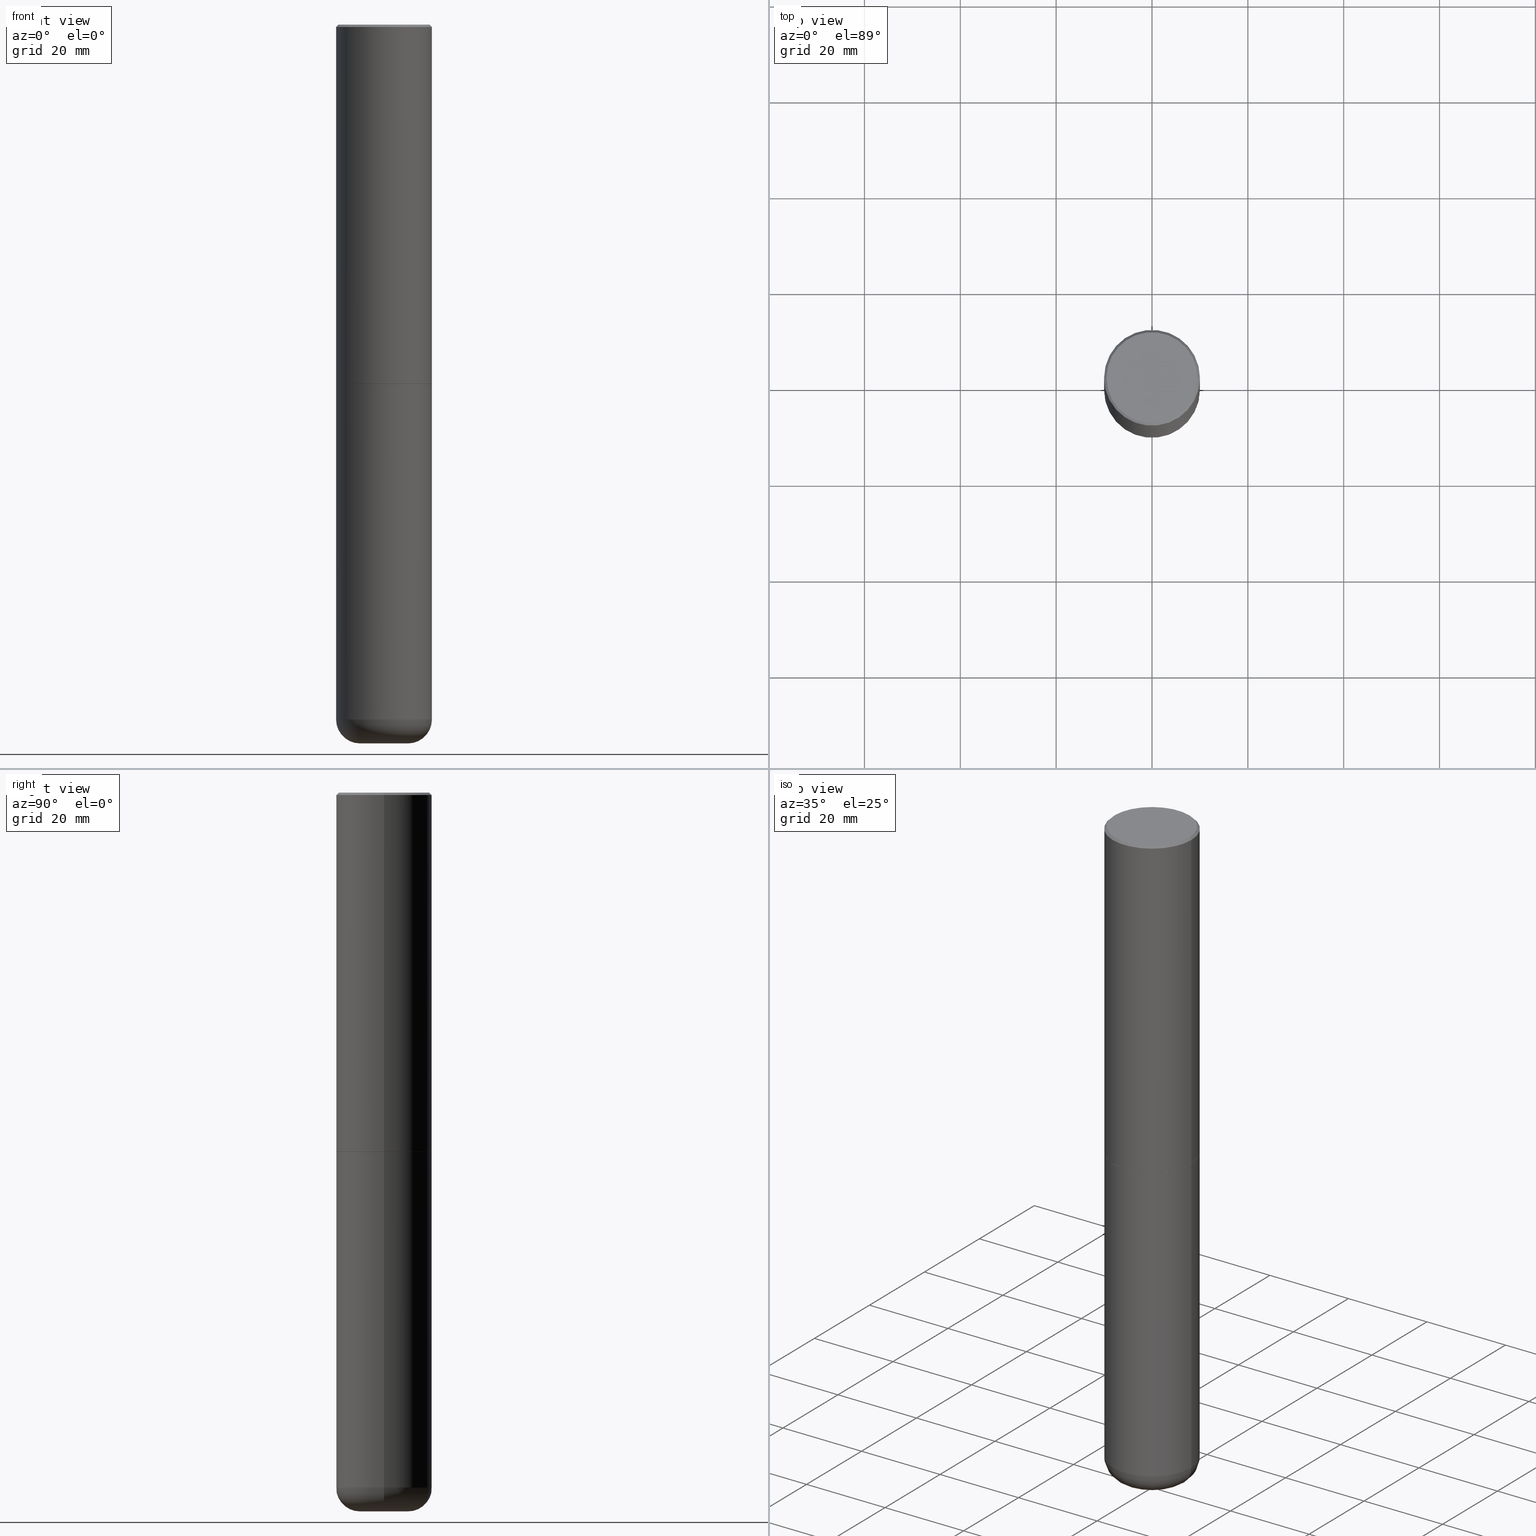
[diagram: canonical four-view strip — front | top / right | iso, engineering-drawing reading convention]
A machine part, canonical four-view strip (front | top / right | iso — engineering-drawing reading convention). The complete STEP part file that produces these views, byte-faithful:
ISO-10303-21;
HEADER;
FILE_DESCRIPTION (( 'STEP AP203' ),
    '1' );
FILE_NAME ('42705.STEP',
    '2024-03-04T03:13:17',
    ( '' ),
    ( '' ),
    'SwSTEP 2.0',
    'SolidWorks 2023',
    '' );
FILE_SCHEMA (( 'CONFIG_CONTROL_DESIGN' ));
ENDSEC;

DATA;
#1 = CARTESIAN_POINT ( 'NONE',  ( 0.1968000000000000582, -2.199319010150685322E-14, -5.905500000000000860 ) ) ;
#2 = AXIS2_PLACEMENT_3D ( 'NONE', #68, #172, #134 ) ;
#3 = AXIS2_PLACEMENT_3D ( 'NONE', #223, #257, #121 ) ;
#4 = DIRECTION ( 'NONE',  ( -2.445468806185136597E-29, 3.491481338843145583E-15, 1.000000000000000000 ) ) ;
#5 = CARTESIAN_POINT ( 'NONE',  ( 0.000000000000000000, 0.000000000000000000, 0.000000000000000000 ) ) ;
#6 = MANIFOLD_SOLID_BREP ( 'Body-Move/Copy2[2]', #271 ) ;
#7 = CARTESIAN_POINT ( 'NONE',  ( 4.890937612370294178E-31, -6.982962677686321191E-17, -0.02000000000000008715 ) ) ;
#8 = CARTESIAN_POINT ( 'NONE',  ( -0.3937000000000000499, -1.232297690937355006E-14, -2.952700000000000102 ) ) ;
#9 = DIRECTION ( 'NONE',  ( -2.445468806185136597E-29, 3.491481338843145583E-15, 1.000000000000000000 ) ) ;
#10 = AXIS2_PLACEMENT_3D ( 'NONE', #318, #384, #125 ) ;
#11 = COORDINATED_UNIVERSAL_TIME_OFFSET ( 5, 0, .BEHIND. ) ;
#12 = COORDINATED_UNIVERSAL_TIME_OFFSET ( 5, 0, .BEHIND. ) ;
#13 = MANIFOLD_SOLID_BREP ( 'Body-Move/Copy2[1]', #309 ) ;
#14 = EDGE_LOOP ( 'NONE', ( #291, #399, #356, #155 ) ) ;
#15 = APPROVAL_DATE_TIME ( #50, #63 ) ;
#16 = ORIENTED_EDGE ( 'NONE', *, *, #144, .F. ) ;
#17 = CIRCLE ( 'NONE', #2, 0.3736999999999997546 ) ;
#18 = APPROVAL_STATUS ( 'not_yet_approved' ) ;
#19 = DIRECTION ( 'NONE',  ( -6.982962677686266711E-15, -1.000000000000000000, 3.491481338843145583E-15 ) ) ;
#20 = CC_DESIGN_APPROVAL ( #63, ( #416 ) ) ;
#21 = EDGE_LOOP ( 'NONE', ( #88, #211, #354, #411 ) ) ;
#22 = APPROVAL ( #243, 'UNSPECIFIED' ) ;
#23 = DIRECTION ( 'NONE',  ( -1.000000000000000000, 6.982962677686266711E-15, 0.000000000000000000 ) ) ;
#24 = VERTEX_POINT ( 'NONE', #250 ) ;
#25 = DIRECTION ( 'NONE',  ( 1.000000000000000000, -6.982962677686267499E-15, 0.000000000000000000 ) ) ;
#26 = ORIENTED_EDGE ( 'NONE', *, *, #175, .T. ) ;
#27 = AXIS2_PLACEMENT_3D ( 'NONE', #106, #74, #196 ) ;
#28 = DIRECTION ( 'NONE',  ( -2.445468806185136597E-29, 3.491481338843145583E-15, 1.000000000000000000 ) ) ;
#29 = FACE_OUTER_BOUND ( 'NONE', #404, .T. ) ;
#30 = EDGE_CURVE ( 'NONE', #159, #218, #314, .T. ) ;
#31 = EDGE_LOOP ( 'NONE', ( #280, #151 ) ) ;
#32 =( NAMED_UNIT ( * ) PLANE_ANGLE_UNIT ( ) SI_UNIT ( $, .RADIAN. ) );
#33 = CARTESIAN_POINT ( 'NONE',  ( -0.3937000000000004385, -1.713406362023246068E-14, -5.708599999999999675 ) ) ;
#34 = EDGE_CURVE ( 'NONE', #386, #347, #173, .T. ) ;
#35 = CARTESIAN_POINT ( 'NONE',  ( -0.3937000000000004385, -2.390410796632568923E-15, -2.951700000000000212 ) ) ;
#36 = CIRCLE ( 'NONE', #370, 0.3736999999999997546 ) ;
#37 = CARTESIAN_POINT ( 'NONE',  ( -7.933270748947670084E-45, 1.132660809489139927E-30, 3.244069492476312449E-16 ) ) ;
#38 = EDGE_CURVE ( 'NONE', #375, #247, #323, .T. ) ;
#39 = APPLICATION_PROTOCOL_DEFINITION ( 'international standard', 'config_control_design', 1994, #358 ) ;
#40 = CARTESIAN_POINT ( 'NONE',  ( 1.396020322698846851E-28, -1.993147037091997783E-14, -5.708599999999999675 ) ) ;
#41 =( LENGTH_UNIT ( ) NAMED_UNIT ( * ) SI_UNIT ( $, .METRE. ) );
#42 = DIRECTION ( 'NONE',  ( -2.438088387897960049E-29, 3.491481338843145188E-15, 1.000000000000000000 ) ) ;
#43 = ADVANCED_BREP_SHAPE_REPRESENTATION ( '42705', ( #13, #6, #241 ), #312 ) ;
#44 = APPROVAL_STATUS ( 'not_yet_approved' ) ;
#45 = DIRECTION ( 'NONE',  ( -2.445468806185136597E-29, 3.491481338843145583E-15, 1.000000000000000000 ) ) ;
#46 = CIRCLE ( 'NONE', #289, 0.1969000000000007411 ) ;
#47 = PERSON_AND_ORGANIZATION_ROLE ( 'design_supplier' ) ;
#48 = EDGE_CURVE ( 'NONE', #278, #169, #215, .T. ) ;
#49 = ORIENTED_EDGE ( 'NONE', *, *, #246, .F. ) ;
#50 = DATE_AND_TIME ( #149, #105 ) ;
#51 = ORIENTED_EDGE ( 'NONE', *, *, #246, .T. ) ;
#52 = AXIS2_PLACEMENT_3D ( 'NONE', #143, #393, #266 ) ;
#53 = CALENDAR_DATE ( 2024, 3, 3 ) ;
#54 = ADVANCED_FACE ( 'NONE', ( #195 ), #59, .T. ) ;
#55 = ORIENTED_EDGE ( 'NONE', *, *, #181, .T. ) ;
#56 = CONICAL_SURFACE ( 'NONE', #171, 0.3926999999999999935, 0.7853981633977554777 ) ;
#57 = PERSON ( 'UNSPECIFIED', 'UNSPECIFIED', 'UNSPECIFIED', ('UNSPECIFIED'), ('UNSPECIFIED'), ('UNSPECIFIED') ) ;
#58 = DIRECTION ( 'NONE',  ( -2.445468806185136597E-29, 3.491481338843145583E-15, 1.000000000000000000 ) ) ;
#59 = TOROIDAL_SURFACE ( 'NONE', #79, 0.1968000000000000305, 0.1969000000000007133 ) ;
#60 = DIRECTION ( 'NONE',  ( 1.000000000000000000, -6.982962677686265922E-15, 0.000000000000000000 ) ) ;
#61 = DIRECTION ( 'NONE',  ( 1.000000000000000000, -6.982962677686265133E-15, 0.000000000000000000 ) ) ;
#62 = DIRECTION ( 'NONE',  ( -1.000000000000000000, 7.105427357601006592E-15, 0.000000000000000000 ) ) ;
#63 = APPROVAL ( #44, 'UNSPECIFIED' ) ;
#64 = CARTESIAN_POINT ( 'NONE',  ( 0.3937000000000001054, -2.770807688499516128E-15, -0.02000000000000008715 ) ) ;
#65 = ORIENTED_EDGE ( 'NONE', *, *, #38, .T. ) ;
#66 = DIRECTION ( 'NONE',  ( -0.7071067811865461294, 2.468850131082242072E-15, -0.7071067811865489050 ) ) ;
#67 = CARTESIAN_POINT ( 'NONE',  ( 7.220735744022852519E-29, -1.030929694920215502E-14, -2.952700000000000102 ) ) ;
#68 = CARTESIAN_POINT ( 'NONE',  ( -7.933270748947670084E-45, 1.132660809489139927E-30, 3.244069492476312449E-16 ) ) ;
#69 = CARTESIAN_POINT ( 'NONE',  ( 1.396020322698846851E-28, -1.993147037091997783E-14, -5.708599999999999675 ) ) ;
#70 = ADVANCED_FACE ( 'NONE', ( #29 ), #333, .F. ) ;
#71 = UNCERTAINTY_MEASURE_WITH_UNIT (LENGTH_MEASURE( 1.000000000000000082E-05 ), #168, 'distance_accuracy_value', 'NONE');
#72 = CONICAL_SURFACE ( 'NONE', #156, 0.3937000000000001054, 0.7853981633974463916 ) ;
#73 = DIRECTION ( 'NONE',  ( -1.000000000000000000, 6.982962677686265922E-15, -4.876176775795935793E-29 ) ) ;
#74 = DIRECTION ( 'NONE',  ( -2.445468806185136597E-29, 3.491481338843145583E-15, 1.000000000000000000 ) ) ;
#75 = DIRECTION ( 'NONE',  ( -2.445468806185136597E-29, 3.491481338843145583E-15, 1.000000000000000000 ) ) ;
#76 = FACE_OUTER_BOUND ( 'NONE', #120, .T. ) ;
#77 = APPROVAL_ROLE ( '' ) ;
#78 = CIRCLE ( 'NONE', #277, 0.3926999999999999935 ) ;
#79 = AXIS2_PLACEMENT_3D ( 'NONE', #167, #180, #295 ) ;
#80 = PERSON_AND_ORGANIZATION ( #57, #383 ) ;
#81 = ORIENTED_EDGE ( 'NONE', *, *, #376, .F. ) ;
#82 = APPROVAL_DATE_TIME ( #210, #22 ) ;
#83 = PRODUCT_RELATED_PRODUCT_CATEGORY ( 'detail', '', ( #117 ) ) ;
#84 = PERSON_AND_ORGANIZATION ( #57, #383 ) ;
#85 = AXIS2_PLACEMENT_3D ( 'NONE', #407, #351, #219 ) ;
#86 = AXIS2_PLACEMENT_3D ( 'NONE', #221, #350, #60 ) ;
#87 = FACE_OUTER_BOUND ( 'NONE', #244, .T. ) ;
#88 = ORIENTED_EDGE ( 'NONE', *, *, #48, .F. ) ;
#89 = DIRECTION ( 'NONE',  ( -2.445468806185136597E-29, 3.491481338843145583E-15, 1.000000000000000000 ) ) ;
#90 = AXIS2_PLACEMENT_3D ( 'NONE', #300, #4, #109 ) ;
#91 = APPROVAL_PERSON_ORGANIZATION ( #80, #63, #118 ) ;
#92 = LINE ( 'NONE', #64, #298 ) ;
#93 = EDGE_LOOP ( 'NONE', ( #94, #164, #385, #313 ) ) ;
#94 = ORIENTED_EDGE ( 'NONE', *, *, #273, .T. ) ;
#95 = FACE_OUTER_BOUND ( 'NONE', #319, .T. ) ;
#96 = ORIENTED_EDGE ( 'NONE', *, *, #248, .F. ) ;
#97 = AXIS2_PLACEMENT_3D ( 'NONE', #321, #28, #311 ) ;
#98 = ADVANCED_FACE ( 'NONE', ( #76 ), #234, .T. ) ;
#99 = CARTESIAN_POINT ( 'NONE',  ( -0.3926999999999999935, -7.513697171524018836E-15, -2.952700000000000102 ) ) ;
#100 = DIRECTION ( 'NONE',  ( 1.000000000000000000, -6.982962677686266711E-15, 0.000000000000000000 ) ) ;
#101 = CARTESIAN_POINT ( 'NONE',  ( 7.220735744022852519E-29, -1.030929694920215502E-14, -2.952700000000000102 ) ) ;
#102 = CARTESIAN_POINT ( 'NONE',  ( 0.3937000000000004385, -1.305499787406839996E-14, -2.951700000000000212 ) ) ;
#103 = VECTOR ( 'NONE', #357, 39.37007874015748143 ) ;
#104 = DIRECTION ( 'NONE',  ( 1.000000000000000000, -6.982962677686265922E-15, 4.876176775795935793E-29 ) ) ;
#105 = LOCAL_TIME ( 22, 13, 17.00000000000000000, #369 ) ;
#106 = CARTESIAN_POINT ( 'NONE',  ( 0.000000000000000000, 0.000000000000000000, 0.000000000000000000 ) ) ;
#107 = CARTESIAN_POINT ( 'NONE',  ( -0.3926999999999999935, -7.518995625872241238E-15, -2.952700000000000102 ) ) ;
#108 = COORDINATED_UNIVERSAL_TIME_OFFSET ( 5, 0, .BEHIND. ) ;
#109 = DIRECTION ( 'NONE',  ( 1.000000000000000000, -6.982962677686266711E-15, 4.876176775795935793E-29 ) ) ;
#110 = DIMENSIONAL_EXPONENTS ( 1.000000000000000000, 0.000000000000000000, 0.000000000000000000, 0.000000000000000000, 0.000000000000000000, 0.000000000000000000, 0.000000000000000000 ) ;
#111 = DATE_AND_TIME ( #116, #235 ) ;
#112 = ADVANCED_FACE ( 'NONE', ( #361 ), #368, .T. ) ;
#113 = DIRECTION ( 'NONE',  ( -2.445468806185136877E-29, 3.491481338843145188E-15, 1.000000000000000000 ) ) ;
#114 = CC_DESIGN_SECURITY_CLASSIFICATION ( #290, ( #261 ) ) ;
#115 = CIRCLE ( 'NONE', #52, 0.3937000000000000499 ) ;
#116 = CALENDAR_DATE ( 2024, 3, 3 ) ;
#117 = PRODUCT ( '42705', '42705', '', ( #183 ) ) ;
#118 = APPROVAL_ROLE ( '' ) ;
#119 = CALENDAR_DATE ( 2024, 3, 3 ) ;
#120 = EDGE_LOOP ( 'NONE', ( #307, #26, #341, #325 ) ) ;
#121 = DIRECTION ( 'NONE',  ( 1.000000000000000000, -6.982962677686265922E-15, 0.000000000000000000 ) ) ;
#122 = EDGE_CURVE ( 'NONE', #247, #375, #355, .T. ) ;
#123 = EDGE_LOOP ( 'NONE', ( #254, #412 ) ) ;
#124 = CARTESIAN_POINT ( 'NONE',  ( -0.1968000000000000582, -1.817732928139738743E-14, -5.905500000000000860 ) ) ;
#125 = DIRECTION ( 'NONE',  ( 1.000000000000000000, -6.982962677686266711E-15, 0.000000000000000000 ) ) ;
#126 = CIRCLE ( 'NONE', #362, 0.1968000000000000582 ) ;
#127 = ORIENTED_EDGE ( 'NONE', *, *, #376, .T. ) ;
#128 = FACE_OUTER_BOUND ( 'NONE', #194, .T. ) ;
#129 = ORIENTED_EDGE ( 'NONE', *, *, #353, .T. ) ;
#130 = FACE_OUTER_BOUND ( 'NONE', #123, .T. ) ;
#131 = EDGE_CURVE ( 'NONE', #406, #352, #115, .T. ) ;
#132 = AXIS2_PLACEMENT_3D ( 'NONE', #208, #45, #272 ) ;
#133 = CC_DESIGN_APPROVAL ( #157, ( #290 ) ) ;
#134 = DIRECTION ( 'NONE',  ( 1.000000000000000000, -6.982962677686266711E-15, 4.869618210878414584E-29 ) ) ;
#135 = FACE_OUTER_BOUND ( 'NONE', #256, .T. ) ;
#136 = AXIS2_PLACEMENT_3D ( 'NONE', #177, #365, #73 ) ;
#137 = DIRECTION ( 'NONE',  ( -2.445468806185136597E-29, 3.491481338843145583E-15, 1.000000000000000000 ) ) ;
#138 = DIRECTION ( 'NONE',  ( 0.000000000000000000, 0.000000000000000000, 1.000000000000000000 ) ) ;
#139 = CARTESIAN_POINT ( 'NONE',  ( 2.609533152651355831E-15, 0.3736999999999997546, -1.142563101701867026E-15 ) ) ;
#140 = ADVANCED_FACE ( 'NONE', ( #130 ), #268, .F. ) ;
#141 = CARTESIAN_POINT ( 'NONE',  ( 0.3937000000000001054, -2.749192406205084005E-15, 1.919750796630860452E-29 ) ) ;
#142 = APPROVAL_PERSON_ORGANIZATION ( #152, #157, #77 ) ;
#143 = CARTESIAN_POINT ( 'NONE',  ( 7.220735744022852519E-29, -1.030929694920215502E-14, -2.952700000000000102 ) ) ;
#144 = EDGE_CURVE ( 'NONE', #159, #386, #237, .T. ) ;
#145 = SHAPE_DEFINITION_REPRESENTATION ( #381, #43 ) ;
#146 = ADVANCED_FACE ( 'NONE', ( #239 ), #389, .F. ) ;
#147 = ORIENTED_EDGE ( 'NONE', *, *, #315, .T. ) ;
#148 = ADVANCED_FACE ( 'NONE', ( #332 ), #303, .T. ) ;
#149 = CALENDAR_DATE ( 2024, 3, 3 ) ;
#150 = AXIS2_PLACEMENT_3D ( 'NONE', #392, #176, #363 ) ;
#151 = ORIENTED_EDGE ( 'NONE', *, *, #186, .F. ) ;
#152 = PERSON_AND_ORGANIZATION ( #57, #383 ) ;
#153 = LINE ( 'NONE', #274, #190 ) ;
#154 = DIRECTION ( 'NONE',  ( 2.445468806185136597E-29, -3.491481338843145583E-15, -1.000000000000000000 ) ) ;
#155 = ORIENTED_EDGE ( 'NONE', *, *, #287, .F. ) ;
#156 = AXIS2_PLACEMENT_3D ( 'NONE', #163, #191, #23 ) ;
#157 = APPROVAL ( #18, 'UNSPECIFIED' ) ;
#158 = CARTESIAN_POINT ( 'NONE',  ( 0.1968000000000000305, -2.130571742588863277E-14, -5.708599999999999675 ) ) ;
#159 = VERTEX_POINT ( 'NONE', #99 ) ;
#160 = EDGE_CURVE ( 'NONE', #218, #347, #199, .T. ) ;
#161 = CARTESIAN_POINT ( 'NONE',  ( 7.220735744022852519E-29, -1.030929694920215502E-14, -2.952700000000000102 ) ) ;
#162 = EDGE_LOOP ( 'NONE', ( #292, #147 ) ) ;
#163 = CARTESIAN_POINT ( 'NONE',  ( 4.890937612370294178E-31, -6.982962677686321191E-17, -0.02000000000000008715 ) ) ;
#164 = ORIENTED_EDGE ( 'NONE', *, *, #229, .T. ) ;
#165 = VECTOR ( 'NONE', #198, 39.37007874015748143 ) ;
#166 = CARTESIAN_POINT ( 'NONE',  ( 0.3736999999999997546, -2.667287895133367570E-15, 3.244069492476496845E-16 ) ) ;
#167 = CARTESIAN_POINT ( 'NONE',  ( 1.396020322698846851E-28, -1.993147037091997783E-14, -5.708599999999999675 ) ) ;
#168 =( CONVERSION_BASED_UNIT ( 'INCH', #414 ) LENGTH_UNIT ( ) NAMED_UNIT ( #110 ) );
#169 = VERTEX_POINT ( 'NONE', #33 ) ;
#170 = DIRECTION ( 'NONE',  ( -2.445468806185136597E-29, 3.491481338843145583E-15, 1.000000000000000000 ) ) ;
#171 = AXIS2_PLACEMENT_3D ( 'NONE', #101, #264, #360 ) ;
#172 = DIRECTION ( 'NONE',  ( -2.445468806185136597E-29, 3.491481338843145583E-15, 1.000000000000000000 ) ) ;
#173 = CIRCLE ( 'NONE', #86, 0.3937000000000004385 ) ;
#174 = CYLINDRICAL_SURFACE ( 'NONE', #90, 0.3937000000000002164 ) ;
#175 = EDGE_CURVE ( 'NONE', #169, #24, #316, .T. ) ;
#176 = DIRECTION ( 'NONE',  ( 2.438088387897960049E-29, -3.491481338843145188E-15, -1.000000000000000000 ) ) ;
#177 = CARTESIAN_POINT ( 'NONE',  ( 7.220735744022852519E-29, -1.030929694920215502E-14, -2.952700000000000102 ) ) ;
#178 = VECTOR ( 'NONE', #260, 39.37007874015748143 ) ;
#179 = PERSON_AND_ORGANIZATION ( #57, #383 ) ;
#180 = DIRECTION ( 'NONE',  ( -2.445468806185136597E-29, 3.491481338843145583E-15, 1.000000000000000000 ) ) ;
#181 = EDGE_CURVE ( 'NONE', #379, #288, #36, .T. ) ;
#182 = ORIENTED_EDGE ( 'NONE', *, *, #394, .T. ) ;
#183 = MECHANICAL_CONTEXT ( 'NONE', #358, 'mechanical' ) ;
#184 = AXIS2_PLACEMENT_3D ( 'NONE', #67, #42, #104 ) ;
#185 = AXIS2_PLACEMENT_3D ( 'NONE', #408, #89, #61 ) ;
#186 = EDGE_CURVE ( 'NONE', #278, #187, #188, .T. ) ;
#187 = VERTEX_POINT ( 'NONE', #1 ) ;
#188 = CIRCLE ( 'NONE', #418, 0.1968000000000000582 ) ;
#189 = ADVANCED_FACE ( 'NONE', ( #135 ), #56, .T. ) ;
#190 = VECTOR ( 'NONE', #113, 39.37007874015748143 ) ;
#191 = DIRECTION ( 'NONE',  ( 2.445468806185136597E-29, -3.491481338843145583E-15, -1.000000000000000000 ) ) ;
#192 = ORIENTED_EDGE ( 'NONE', *, *, #248, .T. ) ;
#193 = DIRECTION ( 'NONE',  ( 1.000000000000000000, -6.982962677686266711E-15, 4.876176775795935793E-29 ) ) ;
#194 = EDGE_LOOP ( 'NONE', ( #413, #192, #65, #81 ) ) ;
#195 = FACE_OUTER_BOUND ( 'NONE', #21, .T. ) ;
#196 = DIRECTION ( 'NONE',  ( 1.000000000000000000, -6.982962677686266711E-15, 4.876176775795935793E-29 ) ) ;
#197 = ORIENTED_EDGE ( 'NONE', *, *, #38, .F. ) ;
#198 = DIRECTION ( 'NONE',  ( -2.445468806185136877E-29, 3.491481338843145188E-15, 1.000000000000000000 ) ) ;
#199 = LINE ( 'NONE', #327, #400 ) ;
#200 = CARTESIAN_POINT ( 'NONE',  ( 0.3937000000000001054, -2.770807688499516128E-15, -0.02000000000000008715 ) ) ;
#201 = CARTESIAN_POINT ( 'NONE',  ( 1.444171603492632494E-28, -2.061894304653819828E-14, -5.905500000000000860 ) ) ;
#202 = CIRCLE ( 'NONE', #3, 0.3937000000000004385 ) ;
#203 = LOCAL_TIME ( 22, 13, 17.00000000000000000, #12 ) ;
#204 = CARTESIAN_POINT ( 'NONE',  ( -0.3937000000000002164, 2.797406750687515970E-15, -1.936584745033357576E-29 ) ) ;
#205 = DIRECTION ( 'NONE',  ( 1.000000000000000000, -6.982962677686264344E-15, 4.883557194083112340E-29 ) ) ;
#206 = DIRECTION ( 'NONE',  ( 1.000000000000000000, -6.982962677686266711E-15, 4.869618210878414584E-29 ) ) ;
#207 = PERSON_AND_ORGANIZATION ( #57, #383 ) ;
#208 = CARTESIAN_POINT ( 'NONE',  ( 0.000000000000000000, 0.000000000000000000, 0.000000000000000000 ) ) ;
#209 = CONICAL_SURFACE ( 'NONE', #382, 0.3937000000000001054, 0.7853981633974463916 ) ;
#210 = DATE_AND_TIME ( #372, #330 ) ;
#211 = ORIENTED_EDGE ( 'NONE', *, *, #186, .T. ) ;
#212 = PERSON_AND_ORGANIZATION ( #57, #383 ) ;
#213 = DATE_AND_TIME ( #119, #203 ) ;
#214 = APPROVAL_DATE_TIME ( #340, #157 ) ;
#215 = CIRCLE ( 'NONE', #344, 0.1969000000000007411 ) ;
#216 = ORIENTED_EDGE ( 'NONE', *, *, #122, .T. ) ;
#217 = ORIENTED_EDGE ( 'NONE', *, *, #34, .F. ) ;
#218 = VERTEX_POINT ( 'NONE', #232 ) ;
#219 = DIRECTION ( 'NONE',  ( 1.000000000000000000, -6.982962677686266711E-15, 0.000000000000000000 ) ) ;
#220 = ADVANCED_FACE ( 'NONE', ( #329 ), #174, .T. ) ;
#221 = CARTESIAN_POINT ( 'NONE',  ( 7.218290275216666916E-29, -1.030580546786331359E-14, -2.951700000000000212 ) ) ;
#222 = AXIS2_PLACEMENT_3D ( 'NONE', #69, #305, #205 ) ;
#223 = CARTESIAN_POINT ( 'NONE',  ( 7.218290275216666916E-29, -1.030580546786331359E-14, -2.951700000000000212 ) ) ;
#224 = CARTESIAN_POINT ( 'NONE',  ( -0.1968000000000000305, -1.853312226694410005E-14, -5.708599999999999675 ) ) ;
#225 = CARTESIAN_POINT ( 'NONE',  ( 4.890937612370294178E-31, -6.982962677686321191E-17, -0.02000000000000008715 ) ) ;
#226 = DIRECTION ( 'NONE',  ( 7.105427357601001859E-15, 1.000000000000000000, -3.491481338843145583E-15 ) ) ;
#227 = ORIENTED_EDGE ( 'NONE', *, *, #366, .T. ) ;
#228 = CIRCLE ( 'NONE', #85, 0.3937000000000001054 ) ;
#229 = EDGE_CURVE ( 'NONE', #169, #352, #153, .T. ) ;
#230 = DIRECTION ( 'NONE',  ( -1.000000000000000000, 6.982962677686265922E-15, -4.876176775795935793E-29 ) ) ;
#231 = CARTESIAN_POINT ( 'NONE',  ( -0.3736999999999997546, 2.644447966039789058E-15, 3.244069492476128545E-16 ) ) ;
#232 = CARTESIAN_POINT ( 'NONE',  ( 0.3926999999999999935, -1.305150639272955064E-14, -2.952700000000000102 ) ) ;
#233 = CYLINDRICAL_SURFACE ( 'NONE', #27, 0.3937000000000002164 ) ;
#234 = CYLINDRICAL_SURFACE ( 'NONE', #132, 0.3937000000000001054 ) ;
#235 = LOCAL_TIME ( 22, 13, 17.00000000000000000, #401 ) ;
#236 = LINE ( 'NONE', #141, #165 ) ;
#237 = LINE ( 'NONE', #107, #178 ) ;
#238 = CARTESIAN_POINT ( 'NONE',  ( -0.3937000000000001054, 2.679362779428220707E-15, -0.02000000000000008715 ) ) ;
#239 = FACE_OUTER_BOUND ( 'NONE', #162, .T. ) ;
#240 = AXIS2_PLACEMENT_3D ( 'NONE', #40, #170, #336 ) ;
#241 = AXIS2_PLACEMENT_3D ( 'NONE', #5, #138, #267 ) ;
#242 = PERSON_AND_ORGANIZATION ( #57, #383 ) ;
#243 = APPROVAL_STATUS ( 'not_yet_approved' ) ;
#244 = EDGE_LOOP ( 'NONE', ( #96, #284, #127, #216 ) ) ;
#245 = ADVANCED_FACE ( 'NONE', ( #128 ), #209, .T. ) ;
#246 = EDGE_CURVE ( 'NONE', #347, #386, #202, .T. ) ;
#247 = VERTEX_POINT ( 'NONE', #253 ) ;
#248 = EDGE_CURVE ( 'NONE', #288, #375, #92, .T. ) ;
#249 = DIRECTION ( 'NONE',  ( 0.7071067811865461294, -7.319954787623251312E-15, -0.7071067811865489050 ) ) ;
#250 = CARTESIAN_POINT ( 'NONE',  ( 0.3937000000000004385, -2.268066277712506105E-14, -5.708599999999999675 ) ) ;
#251 = ADVANCED_FACE ( 'NONE', ( #95 ), #269, .T. ) ;
#252 = ORIENTED_EDGE ( 'NONE', *, *, #409, .T. ) ;
#253 = CARTESIAN_POINT ( 'NONE',  ( -0.3937000000000001054, 2.679362779428220707E-15, -0.02000000000000008715 ) ) ;
#254 = ORIENTED_EDGE ( 'NONE', *, *, #394, .F. ) ;
#255 = AXIS2_PLACEMENT_3D ( 'NONE', #281, #58, #193 ) ;
#256 = EDGE_LOOP ( 'NONE', ( #16, #367, #282, #217 ) ) ;
#257 = DIRECTION ( 'NONE',  ( -2.445468806185136597E-29, 3.491481338843145583E-15, 1.000000000000000000 ) ) ;
#258 = EDGE_LOOP ( 'NONE', ( #380, #310, #129, #339 ) ) ;
#259 = CARTESIAN_POINT ( 'NONE',  ( 0.3937000000000002164, -2.749192406205084794E-15, 1.919750796630861012E-29 ) ) ;
#260 = DIRECTION ( 'NONE',  ( -0.7071067811867647324, 7.493145998871139866E-15, 0.7071067811863303021 ) ) ;
#261 = PRODUCT_DEFINITION_FORMATION_WITH_SPECIFIED_SOURCE ( 'ANY', '', #117, .NOT_KNOWN. ) ;
#262 = DESIGN_CONTEXT ( 'detailed design', #378, 'design' ) ;
#263 =( NAMED_UNIT ( * ) SI_UNIT ( $, .STERADIAN. ) SOLID_ANGLE_UNIT ( ) );
#264 = DIRECTION ( 'NONE',  ( -2.445468806185136597E-29, 3.491481338843145583E-15, 1.000000000000000000 ) ) ;
#265 = CC_DESIGN_DATE_AND_TIME_ASSIGNMENT ( #213, #343, ( #290 ) ) ;
#266 = DIRECTION ( 'NONE',  ( 1.000000000000000000, -6.982962677686267499E-15, 0.000000000000000000 ) ) ;
#267 = DIRECTION ( 'NONE',  ( 1.000000000000000000, 0.000000000000000000, 0.000000000000000000 ) ) ;
#268 = PLANE ( 'NONE',  #184 ) ;
#269 = CONICAL_SURFACE ( 'NONE', #97, 0.3926999999999999935, 0.7853981633977554777 ) ;
#270 = CC_DESIGN_APPROVAL ( #22, ( #261 ) ) ;
#271 = CLOSED_SHELL ( 'NONE', ( #251, #220, #245, #297, #371, #189, #140, #70 ) ) ;
#272 = DIRECTION ( 'NONE',  ( 1.000000000000000000, -6.982962677686266711E-15, 4.876176775795935793E-29 ) ) ;
#273 = EDGE_CURVE ( 'NONE', #24, #169, #228, .T. ) ;
#274 = CARTESIAN_POINT ( 'NONE',  ( -0.3937000000000001054, 2.797406750687515181E-15, -1.936584745033357016E-29 ) ) ;
#275 = ORIENTED_EDGE ( 'NONE', *, *, #353, .F. ) ;
#276 = PERSON_AND_ORGANIZATION_ROLE ( 'creator' ) ;
#277 = AXIS2_PLACEMENT_3D ( 'NONE', #324, #326, #387 ) ;
#278 = VERTEX_POINT ( 'NONE', #124 ) ;
#279 = PERSON_AND_ORGANIZATION_ROLE ( 'design_owner' ) ;
#280 = ORIENTED_EDGE ( 'NONE', *, *, #342, .F. ) ;
#281 = CARTESIAN_POINT ( 'NONE',  ( 0.000000000000000000, 0.000000000000000000, 0.000000000000000000 ) ) ;
#282 = ORIENTED_EDGE ( 'NONE', *, *, #160, .T. ) ;
#283 = DIRECTION ( 'NONE',  ( 1.000000000000000000, -6.982962677686268288E-15, 0.000000000000000000 ) ) ;
#284 = ORIENTED_EDGE ( 'NONE', *, *, #181, .F. ) ;
#285 = DIRECTION ( 'NONE',  ( -2.445468806185136597E-29, 3.491481338843145583E-15, 1.000000000000000000 ) ) ;
#286 = ORIENTED_EDGE ( 'NONE', *, *, #144, .T. ) ;
#287 = EDGE_CURVE ( 'NONE', #187, #24, #46, .T. ) ;
#288 = VERTEX_POINT ( 'NONE', #166 ) ;
#289 = AXIS2_PLACEMENT_3D ( 'NONE', #158, #19, #283 ) ;
#290 = SECURITY_CLASSIFICATION ( '', '', #397 ) ;
#291 = ORIENTED_EDGE ( 'NONE', *, *, #342, .T. ) ;
#292 = ORIENTED_EDGE ( 'NONE', *, *, #131, .T. ) ;
#293 = ADVANCED_FACE ( 'NONE', ( #349 ), #317, .T. ) ;
#294 = LINE ( 'NONE', #204, #395 ) ;
#295 = DIRECTION ( 'NONE',  ( 1.000000000000000000, -6.982962677686264344E-15, 4.883557194083112340E-29 ) ) ;
#296 = AXIS2_PLACEMENT_3D ( 'NONE', #7, #137, #100 ) ;
#297 = ADVANCED_FACE ( 'NONE', ( #87 ), #72, .T. ) ;
#298 = VECTOR ( 'NONE', #249, 39.37007874015748143 ) ;
#299 = CARTESIAN_POINT ( 'NONE',  ( 0.3937000000000000499, -1.305848935540723823E-14, -2.952700000000000102 ) ) ;
#300 = CARTESIAN_POINT ( 'NONE',  ( 0.000000000000000000, 0.000000000000000000, 0.000000000000000000 ) ) ;
#301 = DIRECTION ( 'NONE',  ( 2.438088387897960049E-29, -3.491481338843145188E-15, -1.000000000000000000 ) ) ;
#302 = LINE ( 'NONE', #259, #103 ) ;
#303 = PLANE ( 'NONE',  #150 ) ;
#304 = PERSON_AND_ORGANIZATION_ROLE ( 'creator' ) ;
#305 = DIRECTION ( 'NONE',  ( -2.445468806185136597E-29, 3.491481338843145583E-15, 1.000000000000000000 ) ) ;
#306 = CC_DESIGN_PERSON_AND_ORGANIZATION_ASSIGNMENT ( #212, #276, ( #416 ) ) ;
#307 = ORIENTED_EDGE ( 'NONE', *, *, #229, .F. ) ;
#308 = AXIS2_PLACEMENT_3D ( 'NONE', #161, #285, #25 ) ;
#309 = CLOSED_SHELL ( 'NONE', ( #293, #112, #146, #98, #54, #148 ) ) ;
#310 = ORIENTED_EDGE ( 'NONE', *, *, #34, .T. ) ;
#311 = DIRECTION ( 'NONE',  ( 1.000000000000000000, -6.982962677686265133E-15, 0.000000000000000000 ) ) ;
#312 =( GEOMETRIC_REPRESENTATION_CONTEXT ( 3 ) GLOBAL_UNCERTAINTY_ASSIGNED_CONTEXT ( ( #71 ) ) GLOBAL_UNIT_ASSIGNED_CONTEXT ( ( #168, #32, #263 ) ) REPRESENTATION_CONTEXT ( 'NONE', 'WORKASPACE' ) );
#313 = ORIENTED_EDGE ( 'NONE', *, *, #390, .F. ) ;
#314 = CIRCLE ( 'NONE', #185, 0.3926999999999999935 ) ;
#315 = EDGE_CURVE ( 'NONE', #352, #406, #337, .T. ) ;
#316 = CIRCLE ( 'NONE', #240, 0.3937000000000001054 ) ;
#317 = CYLINDRICAL_SURFACE ( 'NONE', #255, 0.3937000000000001054 ) ;
#318 = CARTESIAN_POINT ( 'NONE',  ( 4.890937612370294178E-31, -6.982962677686321191E-17, -0.02000000000000008715 ) ) ;
#319 = EDGE_LOOP ( 'NONE', ( #182, #286, #49, #415 ) ) ;
#320 = CC_DESIGN_PERSON_AND_ORGANIZATION_ASSIGNMENT ( #334, #279, ( #117 ) ) ;
#321 = CARTESIAN_POINT ( 'NONE',  ( 7.220735744022852519E-29, -1.030929694920215502E-14, -2.952700000000000102 ) ) ;
#322 = APPROVAL_PERSON_ORGANIZATION ( #242, #22, #338 ) ;
#323 = CIRCLE ( 'NONE', #10, 0.3937000000000001054 ) ;
#324 = CARTESIAN_POINT ( 'NONE',  ( 7.220735744022852519E-29, -1.030929694920215502E-14, -2.952700000000000102 ) ) ;
#325 = ORIENTED_EDGE ( 'NONE', *, *, #315, .F. ) ;
#326 = DIRECTION ( 'NONE',  ( -2.445468806185136597E-29, 3.491481338843145583E-15, 1.000000000000000000 ) ) ;
#327 = CARTESIAN_POINT ( 'NONE',  ( 0.3926999999999999935, -1.305150639272955064E-14, -2.952700000000000102 ) ) ;
#328 = DIRECTION ( 'NONE',  ( -2.445468806185136597E-29, 3.491481338843145583E-15, 1.000000000000000000 ) ) ;
#329 = FACE_OUTER_BOUND ( 'NONE', #373, .T. ) ;
#330 = LOCAL_TIME ( 22, 13, 17.00000000000000000, #11 ) ;
#331 = LINE ( 'NONE', #238, #388 ) ;
#332 = FACE_OUTER_BOUND ( 'NONE', #31, .T. ) ;
#333 = PLANE ( 'NONE',  #348 ) ;
#334 = PERSON_AND_ORGANIZATION ( #57, #383 ) ;
#335 = CC_DESIGN_PERSON_AND_ORGANIZATION_ASSIGNMENT ( #84, #374, ( #290 ) ) ;
#336 = DIRECTION ( 'NONE',  ( 1.000000000000000000, -6.982962677686266711E-15, 0.000000000000000000 ) ) ;
#337 = CIRCLE ( 'NONE', #308, 0.3937000000000000499 ) ;
#338 = APPROVAL_ROLE ( '' ) ;
#339 = ORIENTED_EDGE ( 'NONE', *, *, #122, .F. ) ;
#340 = DATE_AND_TIME ( #53, #345 ) ;
#341 = ORIENTED_EDGE ( 'NONE', *, *, #390, .T. ) ;
#342 = EDGE_CURVE ( 'NONE', #187, #278, #126, .T. ) ;
#343 = DATE_TIME_ROLE ( 'classification_date' ) ;
#344 = AXIS2_PLACEMENT_3D ( 'NONE', #224, #226, #62 ) ;
#345 = LOCAL_TIME ( 22, 13, 17.00000000000000000, #108 ) ;
#346 = CC_DESIGN_PERSON_AND_ORGANIZATION_ASSIGNMENT ( #179, #304, ( #261 ) ) ;
#347 = VERTEX_POINT ( 'NONE', #102 ) ;
#348 = AXIS2_PLACEMENT_3D ( 'NONE', #139, #301, #230 ) ;
#349 = FACE_OUTER_BOUND ( 'NONE', #93, .T. ) ;
#350 = DIRECTION ( 'NONE',  ( -2.445468806185136597E-29, 3.491481338843145583E-15, 1.000000000000000000 ) ) ;
#351 = DIRECTION ( 'NONE',  ( -2.445468806185136597E-29, 3.491481338843145583E-15, 1.000000000000000000 ) ) ;
#352 = VERTEX_POINT ( 'NONE', #8 ) ;
#353 = EDGE_CURVE ( 'NONE', #347, #375, #302, .T. ) ;
#354 = ORIENTED_EDGE ( 'NONE', *, *, #287, .T. ) ;
#355 = CIRCLE ( 'NONE', #296, 0.3937000000000001054 ) ;
#356 = ORIENTED_EDGE ( 'NONE', *, *, #273, .F. ) ;
#357 = DIRECTION ( 'NONE',  ( -2.445468806185136877E-29, 3.491481338843145188E-15, 1.000000000000000000 ) ) ;
#358 = APPLICATION_CONTEXT ( 'configuration controlled 3d designs of mechanical parts and assemblies' ) ;
#359 = DIRECTION ( 'NONE',  ( -2.445468806185136877E-29, 3.491481338843145188E-15, 1.000000000000000000 ) ) ;
#360 = DIRECTION ( 'NONE',  ( 1.000000000000000000, -6.982962677686265133E-15, 0.000000000000000000 ) ) ;
#361 = FACE_OUTER_BOUND ( 'NONE', #14, .T. ) ;
#362 = AXIS2_PLACEMENT_3D ( 'NONE', #410, #328, #364 ) ;
#363 = DIRECTION ( 'NONE',  ( -1.000000000000000000, 6.982962677686265922E-15, -4.876176775795935793E-29 ) ) ;
#364 = DIRECTION ( 'NONE',  ( 1.000000000000000000, -6.982962677686259611E-15, 0.000000000000000000 ) ) ;
#365 = DIRECTION ( 'NONE',  ( 2.438088387897960049E-29, -3.491481338843145188E-15, -1.000000000000000000 ) ) ;
#366 = EDGE_CURVE ( 'NONE', #386, #247, #294, .T. ) ;
#367 = ORIENTED_EDGE ( 'NONE', *, *, #30, .T. ) ;
#368 = TOROIDAL_SURFACE ( 'NONE', #222, 0.1968000000000000305, 0.1969000000000007133 ) ;
#369 = COORDINATED_UNIVERSAL_TIME_OFFSET ( 5, 0, .BEHIND. ) ;
#370 = AXIS2_PLACEMENT_3D ( 'NONE', #37, #75, #206 ) ;
#371 = ADVANCED_FACE ( 'NONE', ( #417 ), #233, .T. ) ;
#372 = CALENDAR_DATE ( 2024, 3, 3 ) ;
#373 = EDGE_LOOP ( 'NONE', ( #51, #227, #197, #275 ) ) ;
#374 = PERSON_AND_ORGANIZATION_ROLE ( 'classification_officer' ) ;
#375 = VERTEX_POINT ( 'NONE', #200 ) ;
#376 = EDGE_CURVE ( 'NONE', #379, #247, #331, .T. ) ;
#377 = DIRECTION ( 'NONE',  ( -1.000000000000000000, 6.982962677686266711E-15, 0.000000000000000000 ) ) ;
#378 = APPLICATION_CONTEXT ( 'configuration controlled 3d designs of mechanical parts and assemblies' ) ;
#379 = VERTEX_POINT ( 'NONE', #231 ) ;
#380 = ORIENTED_EDGE ( 'NONE', *, *, #366, .F. ) ;
#381 = PRODUCT_DEFINITION_SHAPE ( 'NONE', 'NONE',  #416 ) ;
#382 = AXIS2_PLACEMENT_3D ( 'NONE', #225, #154, #377 ) ;
#383 = ORGANIZATION ( 'UNSPECIFIED', 'UNSPECIFIED', '' ) ;
#384 = DIRECTION ( 'NONE',  ( -2.445468806185136597E-29, 3.491481338843145583E-15, 1.000000000000000000 ) ) ;
#385 = ORIENTED_EDGE ( 'NONE', *, *, #131, .F. ) ;
#386 = VERTEX_POINT ( 'NONE', #35 ) ;
#387 = DIRECTION ( 'NONE',  ( 1.000000000000000000, -6.982962677686265133E-15, 0.000000000000000000 ) ) ;
#388 = VECTOR ( 'NONE', #66, 39.37007874015748143 ) ;
#389 = PLANE ( 'NONE',  #136 ) ;
#390 = EDGE_CURVE ( 'NONE', #24, #406, #236, .T. ) ;
#391 = DIRECTION ( 'NONE',  ( 1.000000000000000000, -6.982962677686259611E-15, 0.000000000000000000 ) ) ;
#392 = CARTESIAN_POINT ( 'NONE',  ( -8.455771035465108102E-29, -5.340944777536811618E-14, -5.905500000000000860 ) ) ;
#393 = DIRECTION ( 'NONE',  ( -2.445468806185136597E-29, 3.491481338843145583E-15, 1.000000000000000000 ) ) ;
#394 = EDGE_CURVE ( 'NONE', #218, #159, #78, .T. ) ;
#395 = VECTOR ( 'NONE', #359, 39.37007874015748143 ) ;
#396 = DIRECTION ( 'NONE',  ( 0.7071067811867647324, -2.468850131084532135E-15, 0.7071067811863303021 ) ) ;
#397 = SECURITY_CLASSIFICATION_LEVEL ( 'unclassified' ) ;
#398 = CC_DESIGN_DATE_AND_TIME_ASSIGNMENT ( #111, #402, ( #416 ) ) ;
#399 = ORIENTED_EDGE ( 'NONE', *, *, #48, .T. ) ;
#400 = VECTOR ( 'NONE', #396, 39.37007874015748143 ) ;
#401 = COORDINATED_UNIVERSAL_TIME_OFFSET ( 5, 0, .BEHIND. ) ;
#402 = DATE_TIME_ROLE ( 'creation_date' ) ;
#403 = APPLICATION_PROTOCOL_DEFINITION ( 'international standard', 'config_control_design', 1994, #378 ) ;
#404 = EDGE_LOOP ( 'NONE', ( #55, #252 ) ) ;
#405 = CC_DESIGN_PERSON_AND_ORGANIZATION_ASSIGNMENT ( #207, #47, ( #261 ) ) ;
#406 = VERTEX_POINT ( 'NONE', #299 ) ;
#407 = CARTESIAN_POINT ( 'NONE',  ( 1.396020322698846851E-28, -1.993147037091997783E-14, -5.708599999999999675 ) ) ;
#408 = CARTESIAN_POINT ( 'NONE',  ( 7.220735744022852519E-29, -1.030929694920215502E-14, -2.952700000000000102 ) ) ;
#409 = EDGE_CURVE ( 'NONE', #288, #379, #17, .T. ) ;
#410 = CARTESIAN_POINT ( 'NONE',  ( 1.444171603492632494E-28, -2.061894304653819828E-14, -5.905500000000000860 ) ) ;
#411 = ORIENTED_EDGE ( 'NONE', *, *, #175, .F. ) ;
#412 = ORIENTED_EDGE ( 'NONE', *, *, #30, .F. ) ;
#413 = ORIENTED_EDGE ( 'NONE', *, *, #409, .F. ) ;
#414 = LENGTH_MEASURE_WITH_UNIT ( LENGTH_MEASURE( 0.02539999999999999897 ), #41 );
#415 = ORIENTED_EDGE ( 'NONE', *, *, #160, .F. ) ;
#416 = PRODUCT_DEFINITION ( 'UNKNOWN', '', #261, #262 ) ;
#417 = FACE_OUTER_BOUND ( 'NONE', #258, .T. ) ;
#418 = AXIS2_PLACEMENT_3D ( 'NONE', #201, #9, #391 ) ;
ENDSEC;
END-ISO-10303-21;
